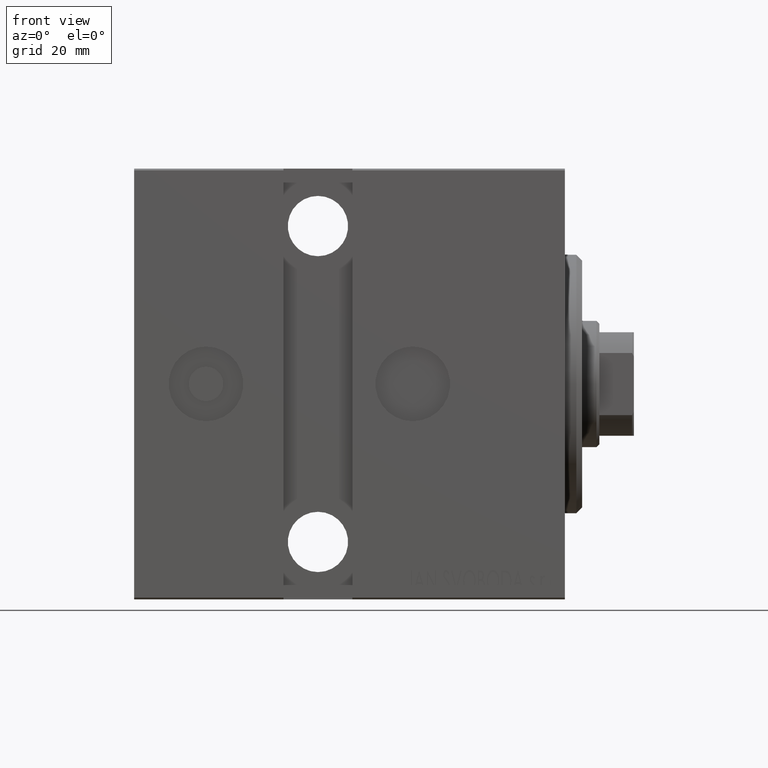
[diagram: clean part render]
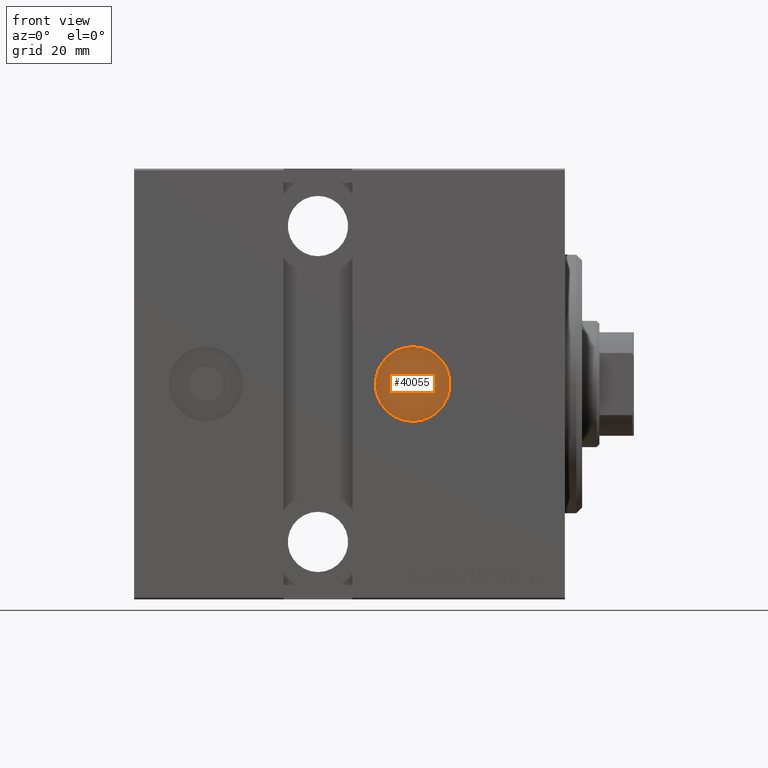
[diagram: same view with one face highlighted and labeled with its STEP entity id]
A machine part, front view. The second image highlights one B-rep face of the part: STEP entity #40055.
In plain terms, the highlighted planar face has unit normal (-0, -1, 0).
Its self-contained STEP definition (entity closure, byte-faithful):
#157 = PLANE ( 'NONE',  #12007 ) ;
#1511 = ORIENTED_EDGE ( 'NONE', *, *, #40259, .T. ) ;
#1571 = DIRECTION ( 'NONE',  ( 6.162975822039154730E-33, 1.000000000000000000, 8.767205616560546857E-17 ) ) ;
#1788 = CARTESIAN_POINT ( 'NONE',  ( 26.50000000000000000, 26.50000000000000000, 2.418099390755548984E-15 ) ) ;
#3831 = FACE_OUTER_BOUND ( 'NONE', #16444, .T. ) ;
#5369 = AXIS2_PLACEMENT_3D ( 'NONE', #29210, #12870, #25983 ) ;
#5592 = VERTEX_POINT ( 'NONE', #23963 ) ;
#6393 = CARTESIAN_POINT ( 'NONE',  ( 26.50000000000000000, 26.50000000000000000, -6.499999999999994671 ) ) ;
#9071 = EDGE_CURVE ( 'NONE', #5592, #14589, #41090, .T. ) ;
#12007 = AXIS2_PLACEMENT_3D ( 'NONE', #16262, #29385, #42497 ) ;
#12870 = DIRECTION ( 'NONE',  ( 6.162975822039154730E-33, 1.000000000000000000, 8.767205616560546857E-17 ) ) ;
#14589 = VERTEX_POINT ( 'NONE', #6393 ) ;
#16262 = CARTESIAN_POINT ( 'NONE',  ( 1.694818351060767551E-31, 26.50000000000000000, 2.284819837210382684E-15 ) ) ;
#16444 = EDGE_LOOP ( 'NONE', ( #35368, #1511 ) ) ;
#22967 = AXIS2_PLACEMENT_3D ( 'NONE', #1788, #1571, #27993 ) ;
#23963 = CARTESIAN_POINT ( 'NONE',  ( 26.50000000000000000, 26.50000000000000000, 6.500000000000000000 ) ) ;
#25983 = DIRECTION ( 'NONE',  ( 0.000000000000000000, 0.000000000000000000, 1.000000000000000000 ) ) ;
#27993 = DIRECTION ( 'NONE',  ( 0.000000000000000000, 0.000000000000000000, 1.000000000000000000 ) ) ;
#29210 = CARTESIAN_POINT ( 'NONE',  ( 26.50000000000000000, 26.50000000000000000, 2.418099390755548984E-15 ) ) ;
#29385 = DIRECTION ( 'NONE',  ( 6.162975822039154730E-33, 1.000000000000000000, 8.767205616560546857E-17 ) ) ;
#35368 = ORIENTED_EDGE ( 'NONE', *, *, #9071, .T. ) ;
#40055 = ADVANCED_FACE ( 'NONE', ( #3831 ), #157, .T. ) ;
#40259 = EDGE_CURVE ( 'NONE', #14589, #5592, #41526, .T. ) ;
#41090 = CIRCLE ( 'NONE', #5369, 6.499999999999997335 ) ;
#41526 = CIRCLE ( 'NONE', #22967, 6.499999999999997335 ) ;
#42497 = DIRECTION ( 'NONE',  ( 0.000000000000000000, -8.767205616560546857E-17, 1.000000000000000000 ) ) ;